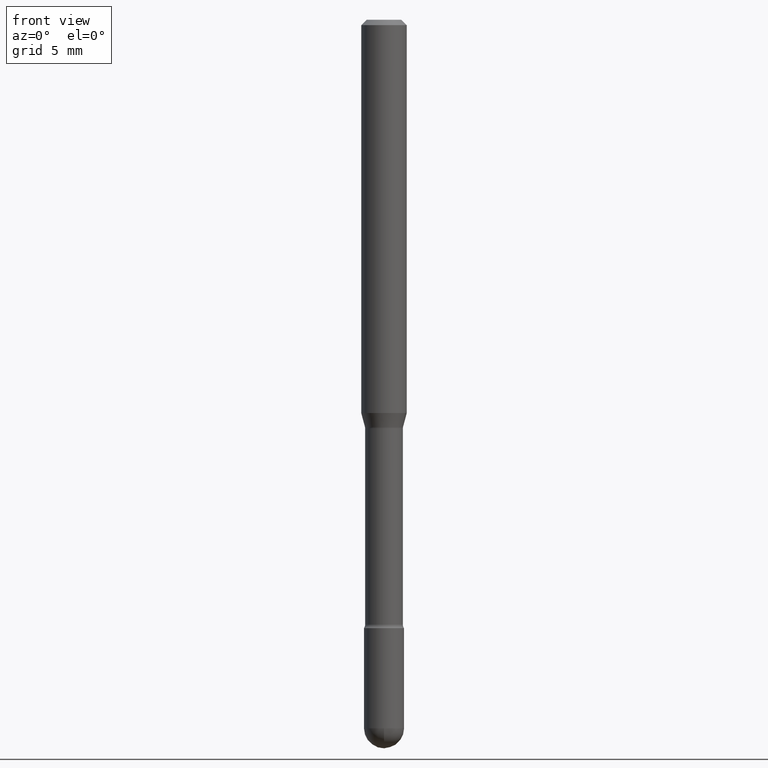
[diagram: clean part render]
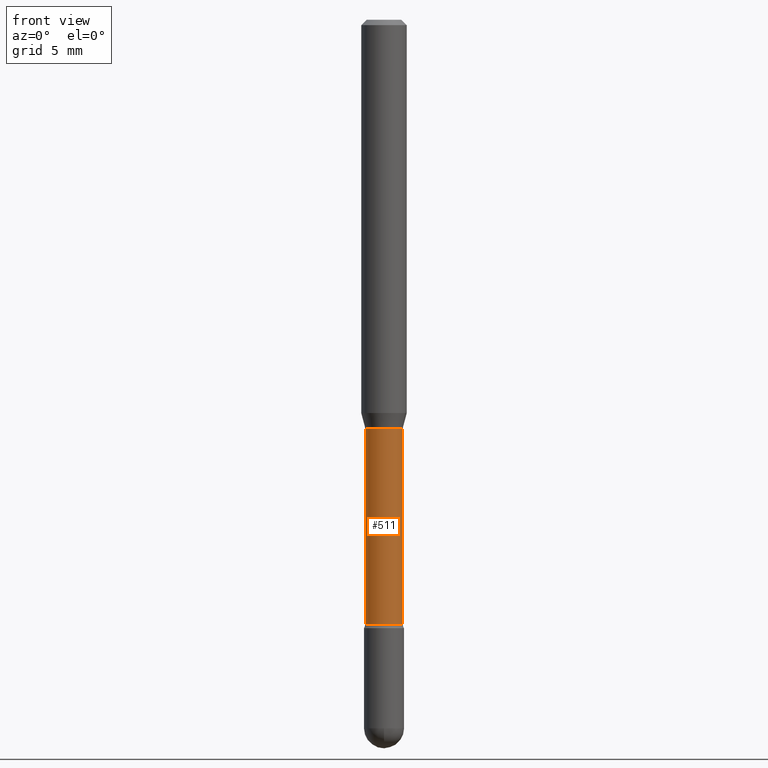
[diagram: same view with one face highlighted and labeled with its STEP entity id]
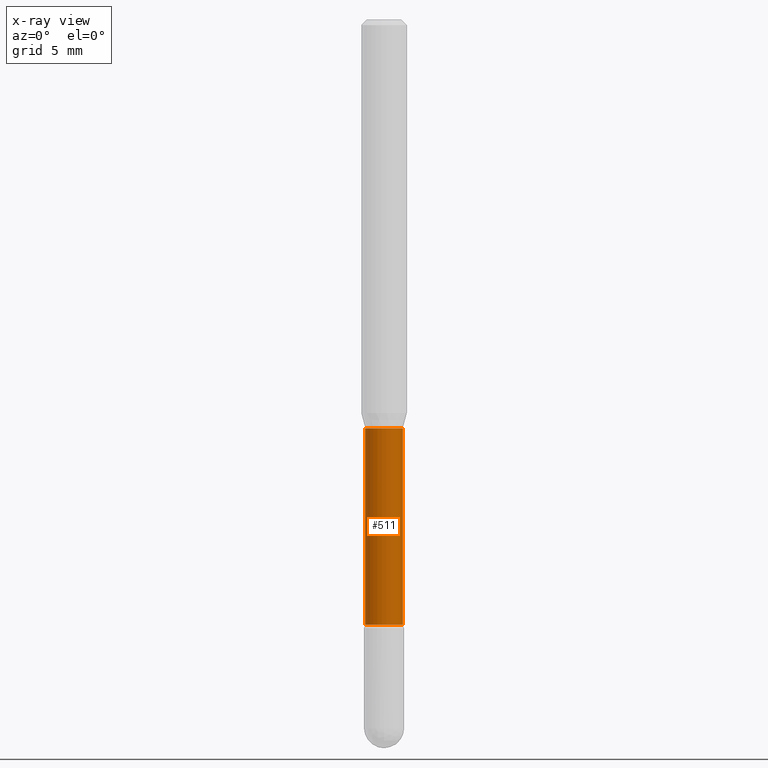
[diagram: x-ray of the same camera — body ghosted, the highlighted face saturated]
A machine part, front view. The second image highlights one B-rep face of the part: STEP entity #511.
The next image is the same camera in x-ray: the body ghosted, the highlighted face saturated — about 0% of this face is hidden behind the body in this view.
In plain terms, the highlighted cylindrical surface (edge-blend (fillet) strip) has radius 1.3132 mm, axis along (-0, 0, 1).
Its self-contained STEP definition (entity closure, byte-faithful):
#4 = CARTESIAN_POINT ( 'NONE',  ( 2.743754344068947151E-29, -3.917354033082399546E-15, -1.121974787463810630 ) ) ;
#60 = EDGE_CURVE ( 'NONE', #423, #94, #475, .T. ) ;
#72 = ORIENTED_EDGE ( 'NONE', *, *, #298, .T. ) ;
#75 = VECTOR ( 'NONE', #124, 39.37007874015748143 ) ;
#93 = CYLINDRICAL_SURFACE ( 'NONE', #336, 0.05169999999999999596 ) ;
#94 = VERTEX_POINT ( 'NONE', #533 ) ;
#101 = DIRECTION ( 'NONE',  ( -2.445468806185136877E-29, 3.491481338843145188E-15, 1.000000000000000000 ) ) ;
#117 = CARTESIAN_POINT ( 'NONE',  ( 0.05169999999999999596, -6.159019543879958449E-15, -1.660613307291702645 ) ) ;
#124 = DIRECTION ( 'NONE',  ( -2.445468806185136877E-29, 3.491481338843145188E-15, 1.000000000000000000 ) ) ;
#183 = ORIENTED_EDGE ( 'NONE', *, *, #523, .T. ) ;
#186 = DIRECTION ( 'NONE',  ( -2.445468806185136597E-29, 3.491481338843145583E-15, 1.000000000000000000 ) ) ;
#187 = ORIENTED_EDGE ( 'NONE', *, *, #477, .F. ) ;
#222 = CARTESIAN_POINT ( 'NONE',  ( -0.05169999999999999596, 3.673505943879734930E-16, 4.780733988912435487E-16 ) ) ;
#227 = CARTESIAN_POINT ( 'NONE',  ( 0.05169999999999999596, -3.610191704363782779E-16, 4.780733988912485777E-16 ) ) ;
#232 = AXIS2_PLACEMENT_3D ( 'NONE', #4, #186, #360 ) ;
#240 = VERTEX_POINT ( 'NONE', #117 ) ;
#244 = VERTEX_POINT ( 'NONE', #454 ) ;
#255 = CIRCLE ( 'NONE', #425, 0.05169999999999999596 ) ;
#298 = EDGE_CURVE ( 'NONE', #423, #240, #255, .T. ) ;
#312 = LINE ( 'NONE', #227, #538 ) ;
#317 = FACE_OUTER_BOUND ( 'NONE', #426, .T. ) ;
#319 = DIRECTION ( 'NONE',  ( 1.000000000000000000, -6.982962677686266711E-15, 4.927827573631271447E-29 ) ) ;
#336 = AXIS2_PLACEMENT_3D ( 'NONE', #490, #484, #319 ) ;
#340 = DIRECTION ( 'NONE',  ( 1.000000000000000000, -6.982962677686275388E-15, 0.000000000000000000 ) ) ;
#346 = CARTESIAN_POINT ( 'NONE',  ( -0.05169999999999999596, -5.435312555127801674E-15, -1.660613307291702645 ) ) ;
#360 = DIRECTION ( 'NONE',  ( 1.000000000000000000, -6.982962677686265922E-15, 0.000000000000000000 ) ) ;
#369 = ORIENTED_EDGE ( 'NONE', *, *, #60, .F. ) ;
#417 = DIRECTION ( 'NONE',  ( -2.445468806185136597E-29, 3.491481338843145583E-15, 1.000000000000000000 ) ) ;
#423 = VERTEX_POINT ( 'NONE', #346 ) ;
#425 = AXIS2_PLACEMENT_3D ( 'NONE', #462, #417, #340 ) ;
#426 = EDGE_LOOP ( 'NONE', ( #369, #72, #183, #187 ) ) ;
#454 = CARTESIAN_POINT ( 'NONE',  ( 0.05169999999999999596, -4.278373203518779106E-15, -1.121974787463810630 ) ) ;
#462 = CARTESIAN_POINT ( 'NONE',  ( 4.060978042117791300E-29, -5.798000373443578100E-15, -1.660613307291702645 ) ) ;
#473 = CIRCLE ( 'NONE', #232, 0.05169999999999999596 ) ;
#475 = LINE ( 'NONE', #222, #75 ) ;
#477 = EDGE_CURVE ( 'NONE', #94, #244, #473, .T. ) ;
#484 = DIRECTION ( 'NONE',  ( -2.445468806185136597E-29, 3.491481338843145583E-15, 1.000000000000000000 ) ) ;
#490 = CARTESIAN_POINT ( 'NONE',  ( -1.169113584055446105E-44, 1.669184350826100908E-30, 4.780733988912460139E-16 ) ) ;
#511 = ADVANCED_FACE ( 'NONE', ( #317 ), #93, .T. ) ;
#523 = EDGE_CURVE ( 'NONE', #240, #244, #312, .T. ) ;
#533 = CARTESIAN_POINT ( 'NONE',  ( -0.05169999999999999596, -4.490326608875016858E-15, -1.121974787463810630 ) ) ;
#538 = VECTOR ( 'NONE', #101, 39.37007874015748143 ) ;